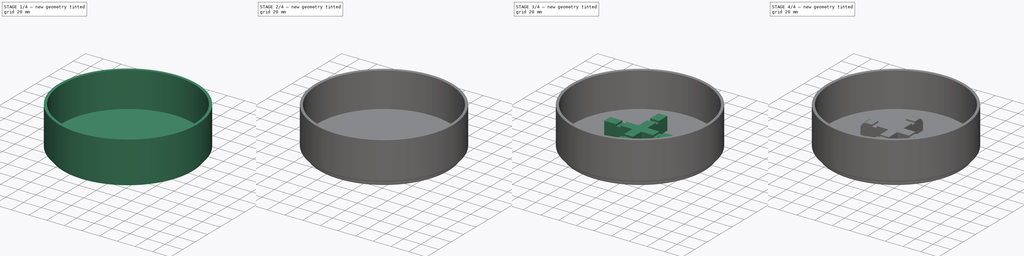
[diagram: build sequence overview — one tinted view per stage of 4, left to right]
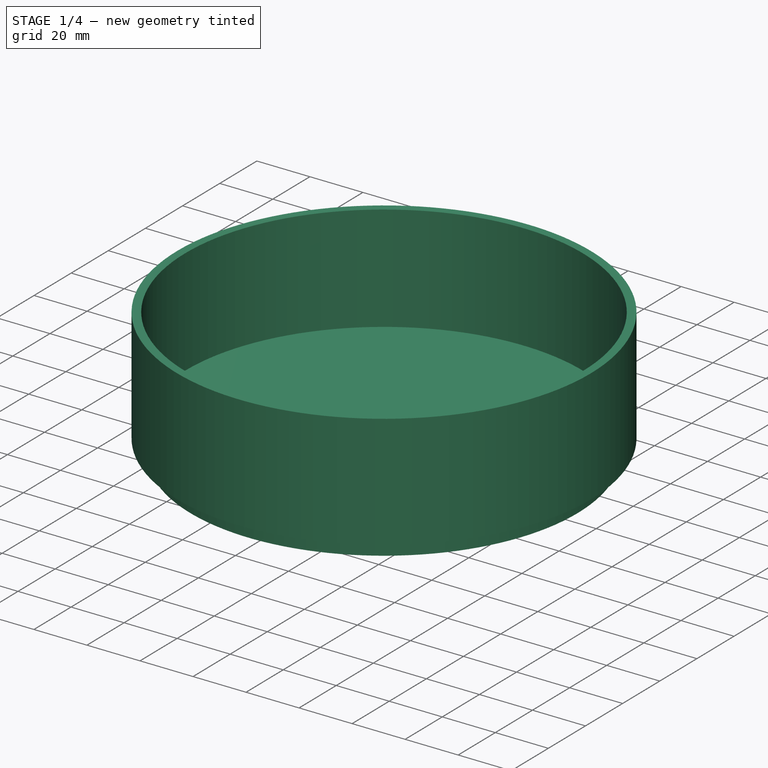
[diagram: stage 1 of 4 — iso view after this stage's code; geometry added in this stage tinted green]
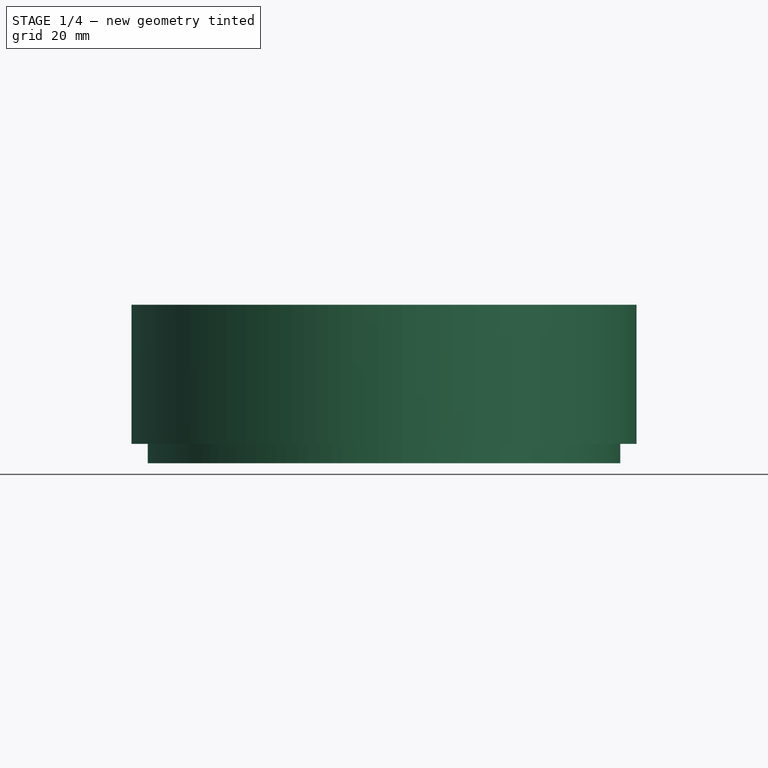
[diagram: stage 1 of 4 — front view after this stage's code; geometry added in this stage tinted green]
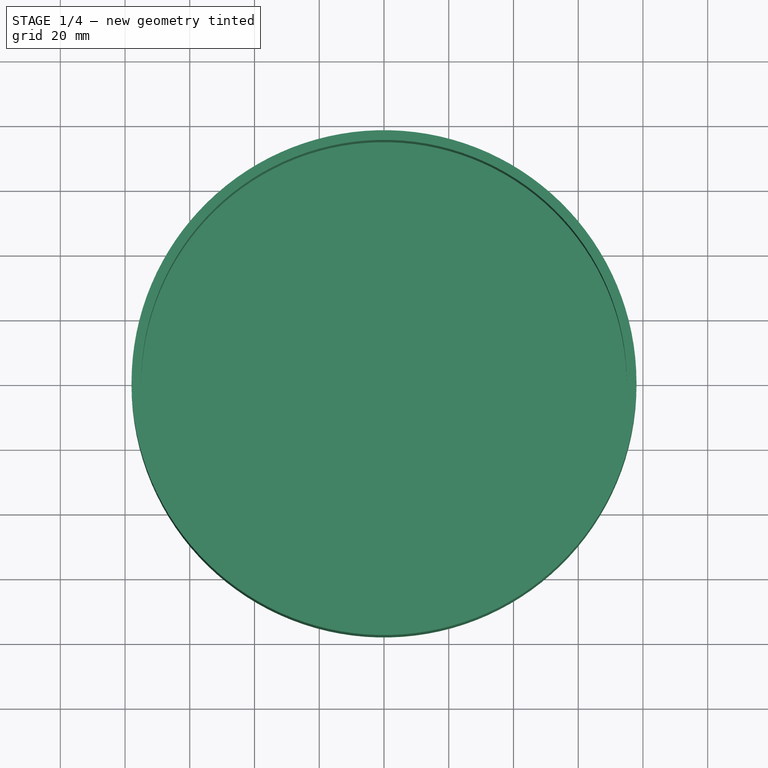
[diagram: stage 1 of 4 — top view after this stage's code; geometry added in this stage tinted green]
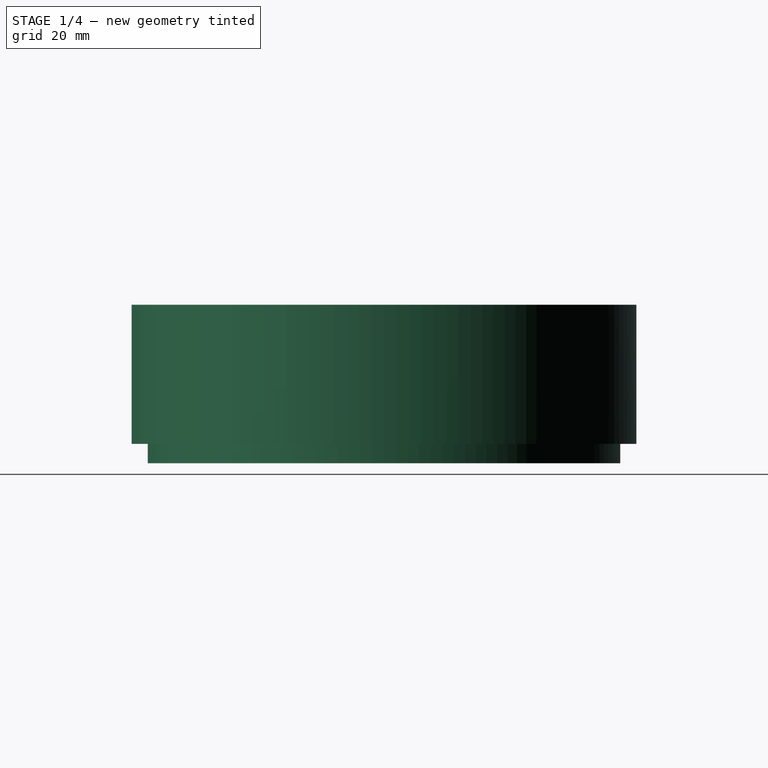
[diagram: stage 1 of 4 — right view after this stage's code; geometry added in this stage tinted green]
FCSTD DOCUMENT  (FreeCAD 0.20R24693 (Git))
Label: stackable-mold-01
License: All rights reserved
LicenseURL: http://en.wikipedia.org/wiki/All_rights_reserved
objects: Sketcher::SketchObject×6, PartDesign::Fillet×5, PartDesign::Pad×4, PartDesign::Pocket×2, PartDesign::Body×2, Spreadsheet::Sheet×1
note: 30 computed .brp shape members not serialized (recipe doc carries the construction recipe); baked Part::Feature solids carry a one-line shape summary decoded from their .brp

FEATURE [Spreadsheet::Sheet] Spreadsheet
  cells = A1=inner_dia; B1(inner_dia)==150mm; A2=inner_height; B2(inner_height)==40mm; A3=thickness; B3(thickness)==3mm; A4=outer_dia; B4(outer_dia)==inner_dia + thickness * 2; A5=outer_height; B5(outer_height)==inner_height + thickness; A6=stack_margin; B6(stack_margin)==1mm; A7=stack_height; B7(stack_height)==thickness * 2; A9=lid_dia; B9(lid_dia)==inner_dia - stack_margin * 2; A10=handle_width; B10(handle_width)==10mm; A11=handle_height; B11(handle_height)==15mm; A12=handle_length; B12(handle_length)==lid_dia / 2; A13=slot_width; B13(slot_width)==5mm; A14=slot_height; B14(slot_height)==2mm; A15=slot_length; B15(slot_length)==handle_width; A16=slot_margin; B16(slot_margin)==(handle_length / 2 - handle_width / 2 - slot_width) / 2; A18=filet_sm; B18(filet_sm)==0.8mm; A19=filet_lg; B19(filet_lg)==8mm
FEATURE [Sketcher::SketchObject] Sketch
  FullyConstrained = true
  MapMode = 5
  Support = -> [XY_Plane]
  expr: Constraints[1] = Spreadsheet.outer_dia
  sketch-geometry (1):
    g0: Circle CenterX=0 CenterY=0 CenterZ=0 NormalX=0 NormalY=0 NormalZ=1 AngleXU=0 Radius=78
  constraints (2):
    c: Coincident(g0,g-1)
    c: Diameter(g0) = 156
FEATURE [PartDesign::Pad] Pad
  Direction = (0,0,1)
  Length = 43
  Length2 = 100
  Profile = -> Sketch
  Type = 0
  expr: Length = Spreadsheet.outer_height
FEATURE [Sketcher::SketchObject] Sketch001
  FullyConstrained = true
  MapMode = 5
  Placement = pos=(0,0,43) rot=(0,0,1;0rad)
  Support = -> [Pad]
  expr: Constraints[1] = Spreadsheet.inner_dia
  sketch-geometry (1):
    g0: Circle CenterX=0 CenterY=0 CenterZ=0 NormalX=0 NormalY=0 NormalZ=1 AngleXU=0 Radius=75
  constraints (2):
    c: Coincident(g0,g-1)
    c: Diameter(g0) = 150
FEATURE [PartDesign::Pocket] Pocket
  BaseFeature = -> Pad
  Length = 40
  Length2 = 100
  Profile = -> Sketch001
  Type = 0
  expr: Length = Spreadsheet.inner_height
FEATURE [Sketcher::SketchObject] Sketch002
  ExternalGeometry = -> [Pocket]
  FullyConstrained = true
  MapMode = 5
  Placement = pos=(0,0,0) rot=(1,0,0;3.14159rad)
  Support = -> [Pocket]
  expr: Constraints[5] = Spreadsheet.thickness + Spreadsheet.stack_margin * 2
  sketch-geometry (3):
    g0: Circle CenterX=0 CenterY=0 CenterZ=0 NormalX=0 NormalY=0 NormalZ=1 AngleXU=0 Radius=73
    g1: GeomPoint X=-78 Y=0 Z=0
    g2: GeomPoint X=-73 Y=0 Z=0
  constraints (6):
    c: Coincident(g0,g-1)
    c: PointOnObject(g1,g-3)
    c: PointOnObject(g2,g0)
    c: PointOnObject(g2,g-1)
    c: PointOnObject(g1,g-1)
    c: DistanceX(g1,g2) = 5
FEATURE [PartDesign::Pad] Pad001
  BaseFeature = -> Pocket
  Direction = (0,0,-1)
  Length = 6
  Length2 = 100
  Profile = -> Sketch002
  Type = 0
  expr: Length = Spreadsheet.stack_height
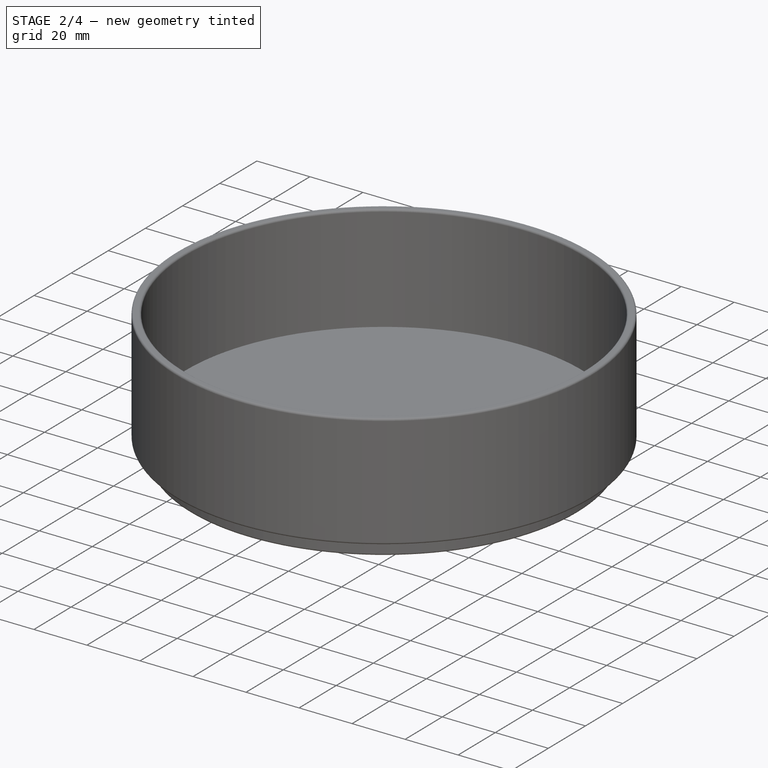
[diagram: stage 2 of 4 — iso view after this stage's code; geometry added in this stage tinted green]
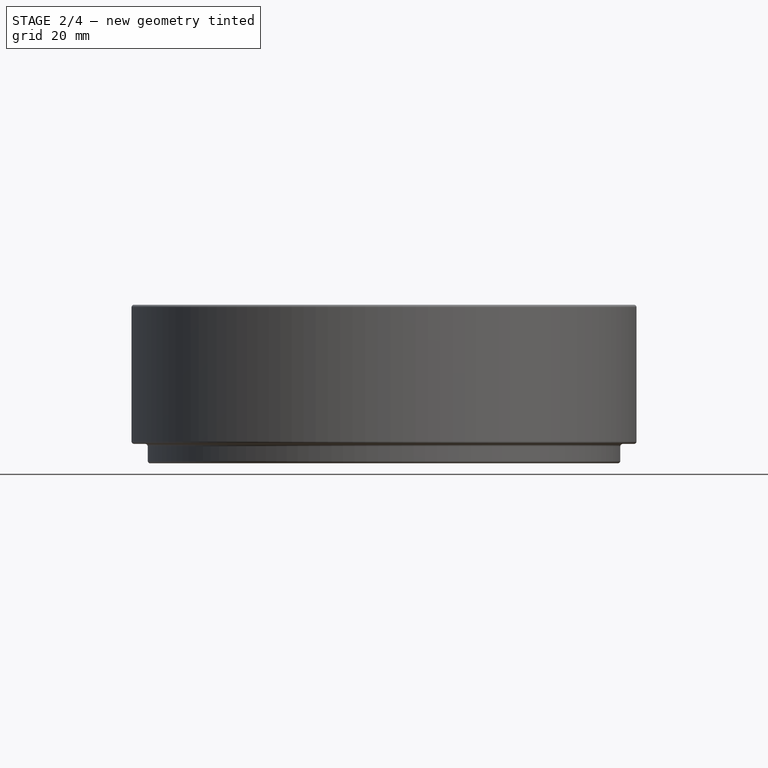
[diagram: stage 2 of 4 — front view after this stage's code; geometry added in this stage tinted green]
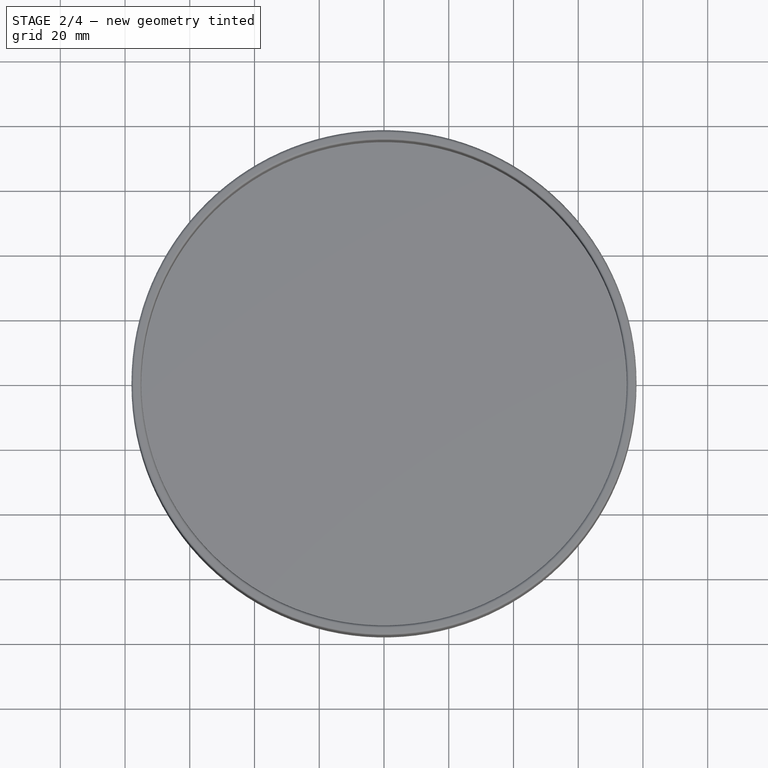
[diagram: stage 2 of 4 — top view after this stage's code; geometry added in this stage tinted green]
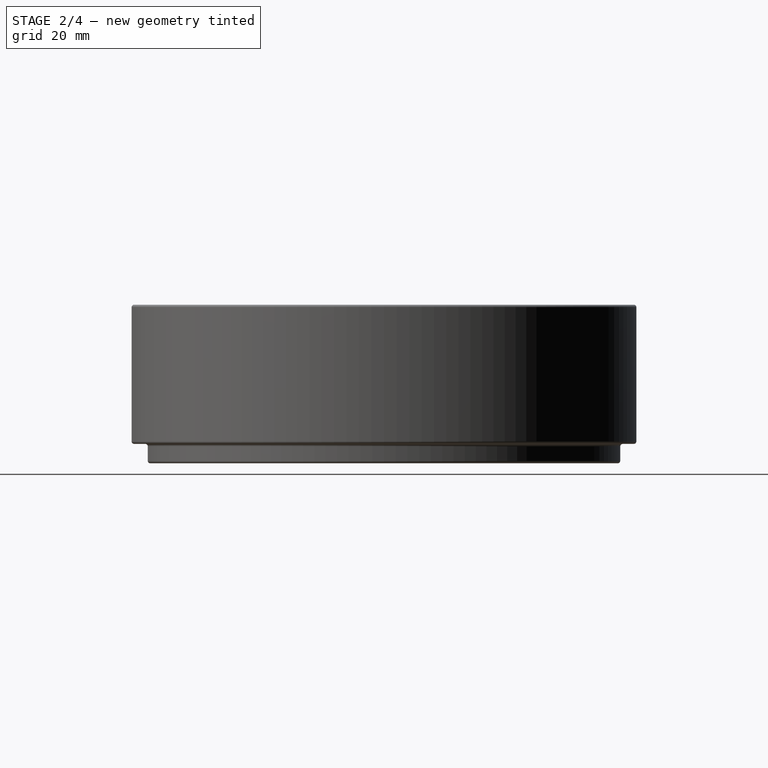
[diagram: stage 2 of 4 — right view after this stage's code; geometry added in this stage tinted green]
FEATURE [Sketcher::SketchObject] Sketch003
  FullyConstrained = true
  MapMode = 5
  Support = -> [XY_Plane001]
  expr: Constraints[1] = Spreadsheet.lid_dia
  sketch-geometry (1):
    g0: Circle CenterX=0 CenterY=0 CenterZ=0 NormalX=0 NormalY=0 NormalZ=1 AngleXU=0 Radius=74
  constraints (2):
    c: Coincident(g0,g-1)
    c: Diameter(g0) = 148
FEATURE [PartDesign::Pad] Pad002
  Direction = (0,0,1)
  Length = 3
  Length2 = 100
  Profile = -> Sketch003
  Type = 0
  expr: Length = Spreadsheet.thickness
FEATURE [PartDesign::Body] Body001  label="lid"
  Group = -> [Sketch003,Pad002,Sketch004,Pad003,Sketch005,Pocket001,Fillet,Fillet001,Fillet002]
  Origin = -> Origin001
  Placement = pos=(0,0,57) rot=(0,0,1;0rad)
  Tip = -> Fillet002
FEATURE [PartDesign::Fillet] Fillet003
  Base = -> Pad001 [Face3]
  BaseFeature = -> Pad001
  Radius = 0.8
  SupportTransform = false
  expr: Radius = Spreadsheet.filet_sm
FEATURE [PartDesign::Fillet] Fillet004
  Base = -> Fillet003 [Edge3,Face5,Face3]
  BaseFeature = -> Fillet003
  Radius = 0.8
  SupportTransform = false
  expr: Radius = Spreadsheet.filet_sm
FEATURE [PartDesign::Body] Body  label="level"
  Group = -> [Sketch,Pad,Sketch001,Pocket,Sketch002,Pad001,Fillet003,Fillet004]
  Origin = -> Origin
  Tip = -> Fillet004
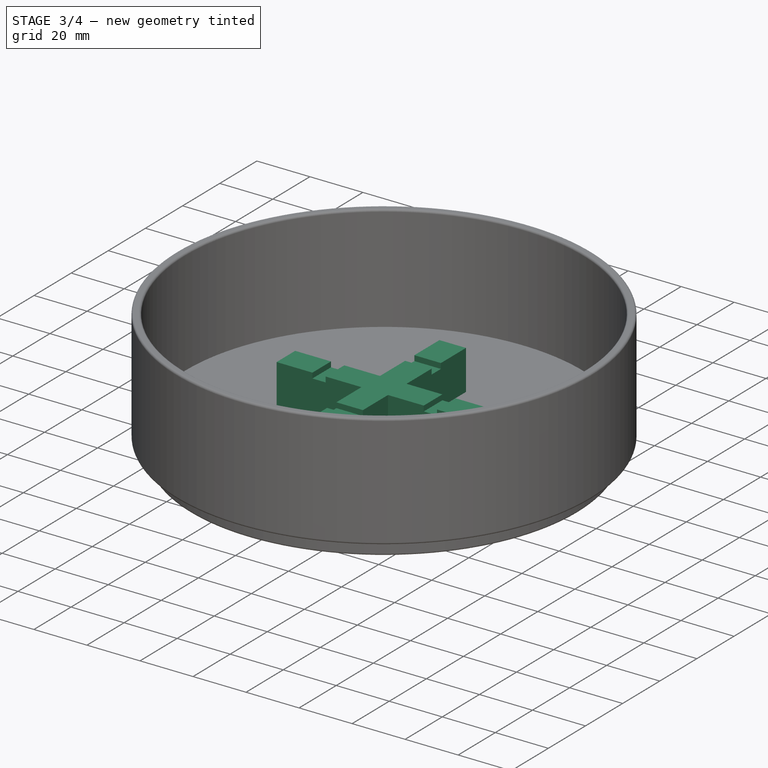
[diagram: stage 3 of 4 — iso view after this stage's code; geometry added in this stage tinted green]
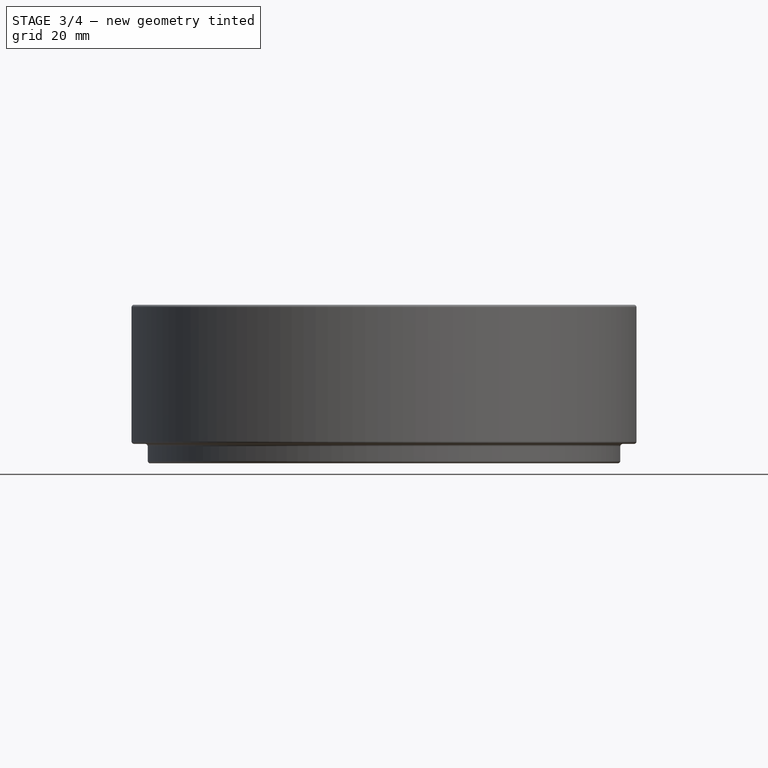
[diagram: stage 3 of 4 — front view after this stage's code; geometry added in this stage tinted green]
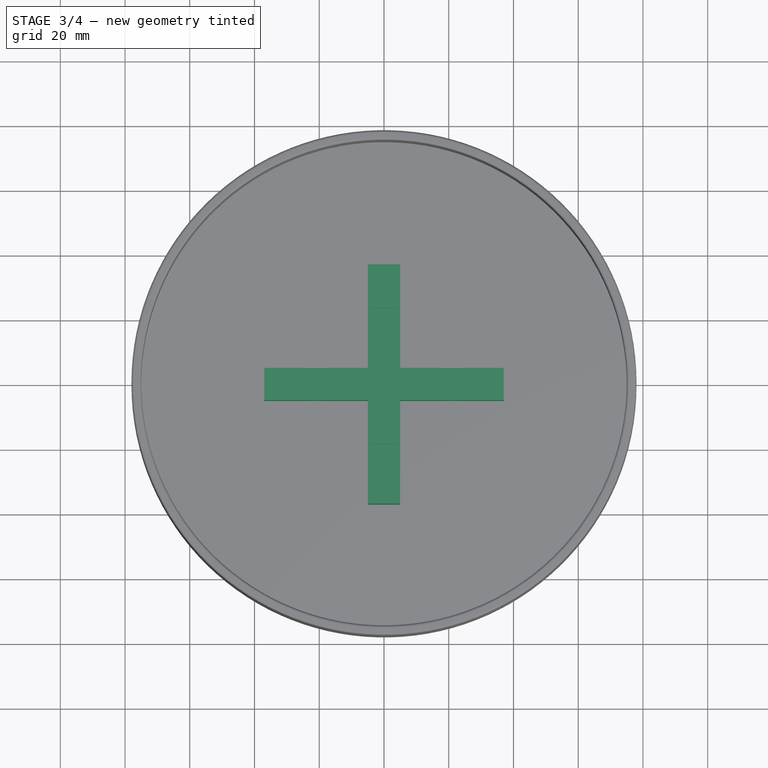
[diagram: stage 3 of 4 — top view after this stage's code; geometry added in this stage tinted green]
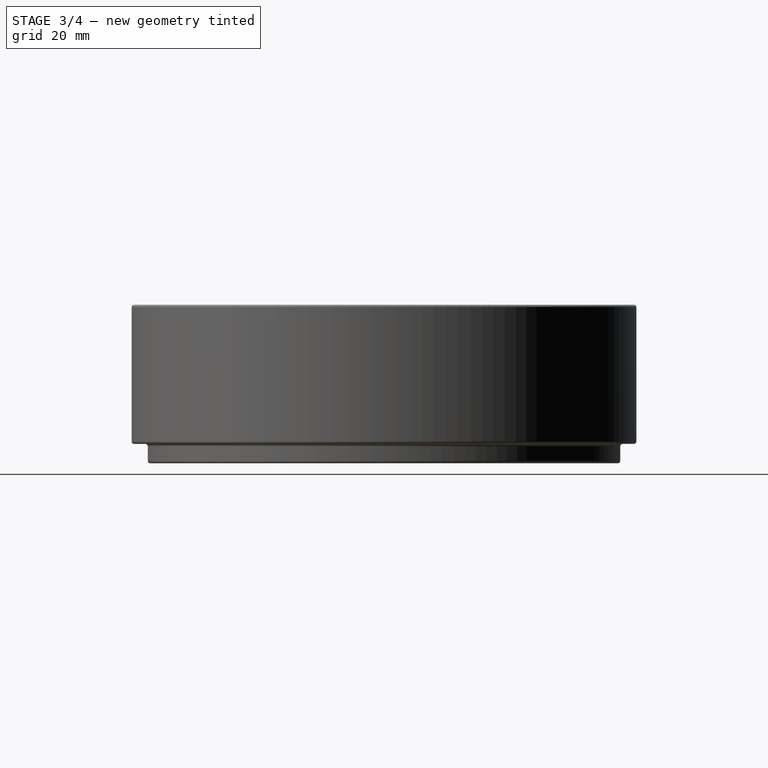
[diagram: stage 3 of 4 — right view after this stage's code; geometry added in this stage tinted green]
FEATURE [Sketcher::SketchObject] Sketch004
  FullyConstrained = true
  MapMode = 5
  Placement = pos=(0,0,3) rot=(0,0,1;0rad)
  Support = -> [Pad002]
  expr: Constraints[8] = Spreadsheet.handle_length
  expr: Constraints[7] = Spreadsheet.handle_width
  sketch-geometry (24):
    g0: LineSegment StartX=-5 StartY=37 StartZ=0 EndX=5 EndY=37 EndZ=0
    g1: LineSegment StartX=5 StartY=37 StartZ=0 EndX=5 EndY=-37 EndZ=0
    g2: LineSegment StartX=5 StartY=-37 StartZ=0 EndX=-5 EndY=-37 EndZ=0
    g3: LineSegment StartX=-5 StartY=-37 StartZ=0 EndX=-5 EndY=37 EndZ=0
    g4: LineSegment StartX=-37 StartY=5 StartZ=0 EndX=37 EndY=5 EndZ=0
    g5: LineSegment StartX=37 StartY=5 StartZ=0 EndX=37 EndY=-5 EndZ=0
    g6: LineSegment StartX=37 StartY=-5 StartZ=0 EndX=-37 EndY=-5 EndZ=0
    g7: LineSegment StartX=-37 StartY=-5 StartZ=0 EndX=-37 EndY=5 EndZ=0
    g8: GeomPoint X=-5 Y=5 Z=0
    g9: GeomPoint X=-5 Y=-5 Z=0
    g10: GeomPoint X=5 Y=-5 Z=0
    g11: GeomPoint X=5 Y=5 Z=0
    g12: LineSegment StartX=-5 StartY=37 StartZ=0 EndX=-5 EndY=5 EndZ=0
    g13: LineSegment StartX=-37 StartY=5 StartZ=0 EndX=-37 EndY=-5 EndZ=0
    g14: LineSegment StartX=-5 StartY=-5 StartZ=0 EndX=-5 EndY=-37 EndZ=0
    g15: LineSegment StartX=5 StartY=-37 StartZ=0 EndX=5 EndY=-5 EndZ=0
    g16: LineSegment StartX=37 StartY=-5 StartZ=0 EndX=37 EndY=5 EndZ=0
    g17: LineSegment StartX=5 StartY=5 StartZ=0 EndX=5 EndY=37 EndZ=0
    g18: LineSegment StartX=-5 StartY=37 StartZ=0 EndX=5 EndY=37 EndZ=0
    g19: LineSegment StartX=-37 StartY=5 StartZ=0 EndX=-5 EndY=5 EndZ=0
    g20: LineSegment StartX=-37 StartY=-5 StartZ=0 EndX=-5 EndY=-5 EndZ=0
    g21: LineSegment StartX=5 StartY=-5 StartZ=0 EndX=37 EndY=-5 EndZ=0
    g22: LineSegment StartX=5 StartY=5 StartZ=0 EndX=37 EndY=5 EndZ=0
    g23: LineSegment StartX=-5 StartY=-37 StartZ=0 EndX=5 EndY=-37 EndZ=0
  constraints (52):
    c: Coincident(g0,g1)
    c: Coincident(g1,g2)
    c: Coincident(g2,g3)
    c: Coincident(g3,g0)
    c: Horizontal(g2)
    c: Symmetric(g0,g0,g-2)
    c: Symmetric(g0,g2,g-1)
    c: DistanceX(g0,g0) = 10
    c: DistanceY(g3,g3) = 74
    c: Coincident(g4,g5)
    c: Coincident(g5,g6)
    c: Coincident(g6,g7)
    c: Coincident(g7,g4)
    c: Horizontal(g6)
    c: Vertical(g5)
    c: Symmetric(g4,g4,g-2)
    c: Symmetric(g6,g4,g-1)
    c: Equal(g7,g0)
    c: Equal(g4,g3)
    c: PointOnObject(g8,g3)
    c: PointOnObject(g9,g3)
    c: PointOnObject(g10,g1)
    c: PointOnObject(g11,g4)
    c: PointOnObject(g11,g1)
    c: PointOnObject(g8,g4)
    c: PointOnObject(g9,g6)
    c: PointOnObject(g10,g6)
    c: Coincident(g12,g0)
    c: Coincident(g12,g8)
    c: Coincident(g13,g4)
    c: Coincident(g13,g6)
    c: Coincident(g14,g9)
    c: Coincident(g14,g2)
    c: Coincident(g15,g1)
    c: Coincident(g15,g10)
    c: Vertical(g15)
    c: Coincident(g16,g5)
    c: Coincident(g16,g4)
    c: Coincident(g17,g11)
    c: Coincident(g17,g0)
    c: Coincident(g18,g12)
    c: Coincident(g18,g17)
    c: Coincident(g19,g13)
    c: Coincident(g19,g12)
    c: Coincident(g20,g13)
    c: Coincident(g20,g14)
    c: Coincident(g21,g15)
    c: Coincident(g21,g16)
    c: Coincident(g22,g17)
    c: Coincident(g22,g16)
    c: Coincident(g23,g14)
    c: Coincident(g23,g15)
FEATURE [PartDesign::Pad] Pad003
  BaseFeature = -> Pad002
  Direction = (0,0,1)
  Length = 15
  Length2 = 100
  Profile = -> Sketch004
  Type = 0
  expr: Length = Spreadsheet.handle_height
FEATURE [Sketcher::SketchObject] Sketch005
  ExternalGeometry = -> [Pad003]
  FullyConstrained = true
  MapMode = 5
  Placement = pos=(0,0,18) rot=(0,0,1;0rad)
  Support = -> [Pad003]
  expr: Constraints[47] = Spreadsheet.slot_margin
  expr: Constraints[46] = Spreadsheet.slot_margin
  expr: Constraints[45] = Spreadsheet.slot_margin
  expr: Constraints[38] = Spreadsheet.slot_margin
  expr: Constraints[37] = Spreadsheet.slot_width
  expr: Constraints[36] = Spreadsheet.slot_length
  sketch-geometry (16):
    g0: LineSegment StartX=-18.5 StartY=5 StartZ=0 EndX=-23.5 EndY=5 EndZ=0
    g1: LineSegment StartX=-23.5 StartY=5 StartZ=0 EndX=-23.5 EndY=-5 EndZ=0
    g2: LineSegment StartX=-23.5 StartY=-5 StartZ=0 EndX=-18.5 EndY=-5 EndZ=0
    g3: LineSegment StartX=-18.5 StartY=-5 StartZ=0 EndX=-18.5 EndY=5 EndZ=0
    g4: LineSegment StartX=18.5 StartY=5 StartZ=0 EndX=23.5 EndY=5 EndZ=0
    g5: LineSegment StartX=23.5 StartY=5 StartZ=0 EndX=23.5 EndY=-5 EndZ=0
    g6: LineSegment StartX=23.5 StartY=-5 StartZ=0 EndX=18.5 EndY=-5 EndZ=0
    g7: LineSegment StartX=18.5 StartY=-5 StartZ=0 EndX=18.5 EndY=5 EndZ=0
    g8: LineSegment StartX=-5 StartY=18.5 StartZ=0 EndX=5 EndY=18.5 EndZ=0
    g9: LineSegment StartX=5 StartY=18.5 StartZ=0 EndX=5 EndY=23.5 EndZ=0
    g10: LineSegment StartX=5 StartY=23.5 StartZ=0 EndX=-5 EndY=23.5 EndZ=0
    g11: LineSegment StartX=-5 StartY=23.5 StartZ=0 EndX=-5 EndY=18.5 EndZ=0
    g12: LineSegment StartX=-5 StartY=-23.5 StartZ=0 EndX=5 EndY=-23.5 EndZ=0
    g13: LineSegment StartX=5 StartY=-23.5 StartZ=0 EndX=5 EndY=-18.5 EndZ=0
    g14: LineSegment StartX=5 StartY=-18.5 StartZ=0 EndX=-5 EndY=-18.5 EndZ=0
    g15: LineSegment StartX=-5 StartY=-18.5 StartZ=0 EndX=-5 EndY=-23.5 EndZ=0
  constraints (48):
    c: Coincident(g0,g1)
    c: Coincident(g1,g2)
    c: Coincident(g2,g3)
    c: Coincident(g3,g0)
    c: Horizontal(g0)
    c: Horizontal(g2)
    c: Vertical(g1)
    c: Vertical(g3)
    c: PointOnObject(g0,g-8)
    c: Coincident(g4,g5)
    c: Coincident(g5,g6)
    c: Coincident(g6,g7)
    c: Coincident(g7,g4)
    c: Horizontal(g4)
    c: Horizontal(g6)
    c: Vertical(g5)
    c: Vertical(g7)
    c: PointOnObject(g4,g-9)
    c: Coincident(g8,g9)
    c: Coincident(g9,g10)
    c: Coincident(g10,g11)
    c: Coincident(g11,g8)
    c: Horizontal(g8)
    c: Horizontal(g10)
    c: Vertical(g9)
    c: Vertical(g11)
    c: PointOnObject(g8,g-10)
    c: Coincident(g12,g13)
    c: Coincident(g13,g14)
    c: Coincident(g14,g15)
    c: Coincident(g15,g12)
    c: Horizontal(g12)
    c: Horizontal(g14)
    c: Vertical(g13)
    c: Vertical(g15)
    c: PointOnObject(g12,g-7)
    c: DistanceY(g3,g3) = 10
    c: DistanceX(g0,g0) = 5
    c: DistanceX(g-8,g0) = 13.5
    c: Equal(g1,g8)
    c: Equal(g8,g7)
    c: Equal(g7,g12)
    c: Equal(g0,g11)
    c: Equal(g11,g4)
    c: Equal(g4,g13)
    c: DistanceY(g10,g-10) = 13.5
    c: DistanceX(g4,g-9) = 13.5
    c: DistanceY(g-7,g12) = 13.5
FEATURE [PartDesign::Pocket] Pocket001
  BaseFeature = -> Pad003
  Length = 2
  Length2 = 100
  Profile = -> Sketch005
  Type = 0
  expr: Length = Spreadsheet.slot_height
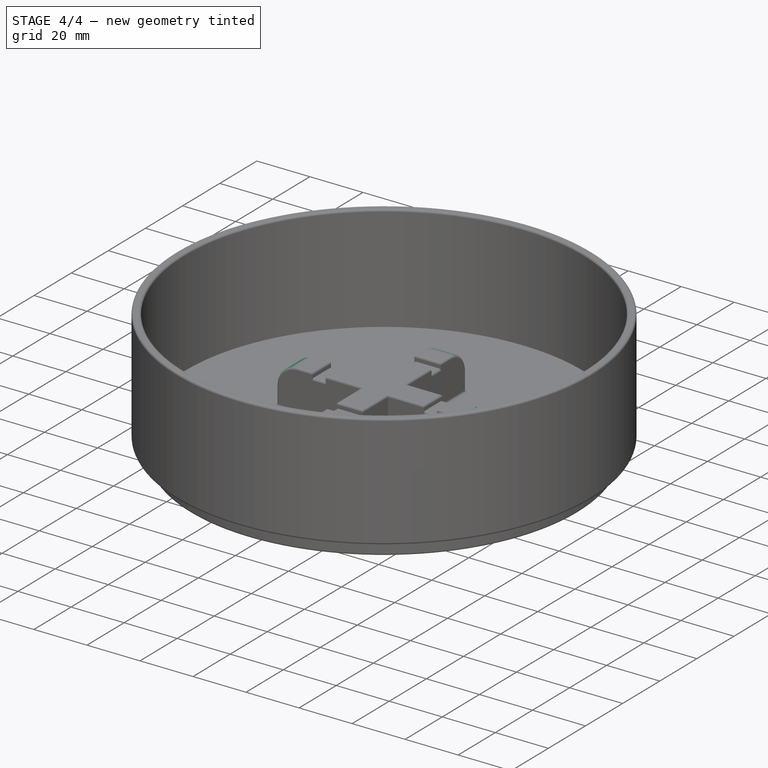
[diagram: stage 4 of 4 — iso view after this stage's code; geometry added in this stage tinted green]
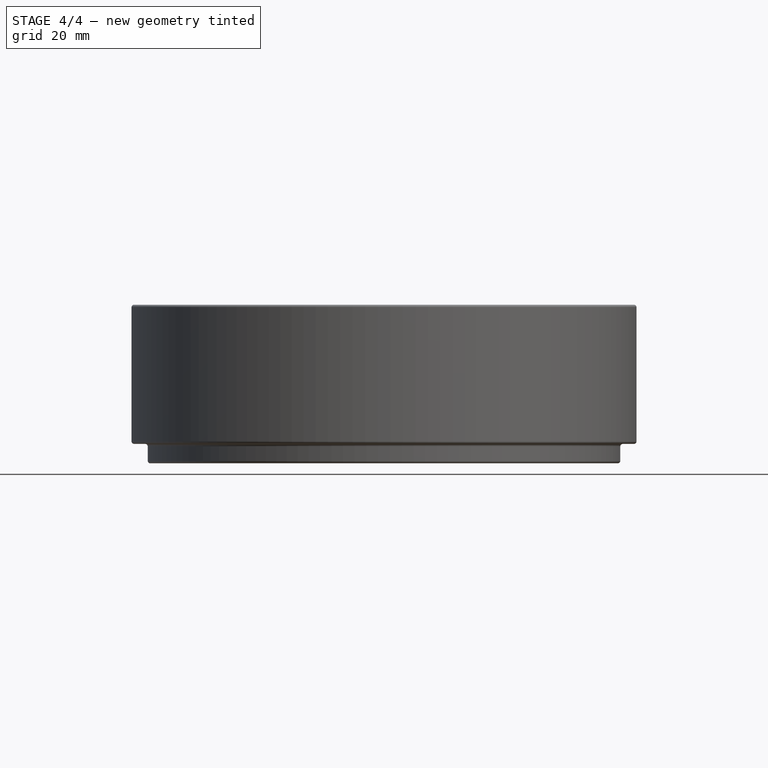
[diagram: stage 4 of 4 — front view after this stage's code; geometry added in this stage tinted green]
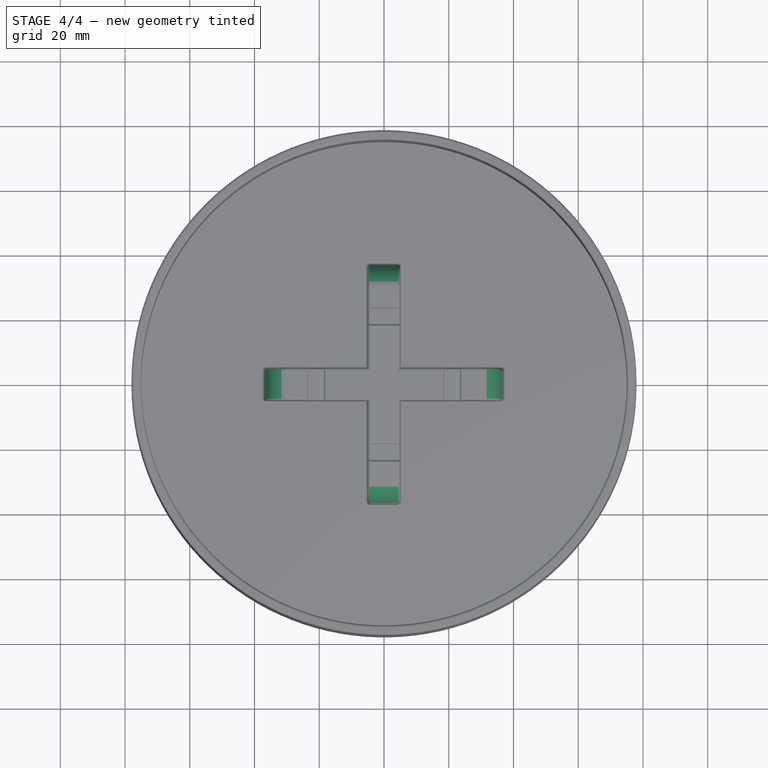
[diagram: stage 4 of 4 — top view after this stage's code; geometry added in this stage tinted green]
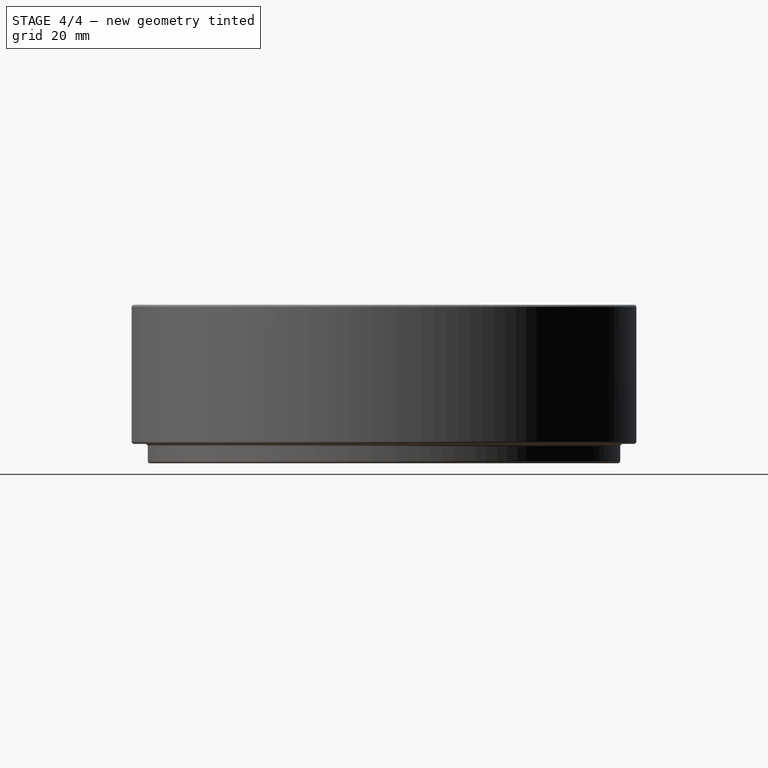
[diagram: stage 4 of 4 — right view after this stage's code; geometry added in this stage tinted green]
FEATURE [PartDesign::Fillet] Fillet
  Base = -> Pocket001 [Edge24,Edge66,Edge52,Edge38]
  BaseFeature = -> Pocket001
  Radius = 8
  SupportTransform = false
  expr: Radius = Spreadsheet.filet_lg
FEATURE [PartDesign::Fillet] Fillet001
  Base = -> Fillet [Edge32,Edge33,Edge30,Edge7,Edge8,Edge4,Edge45,Edge44,Edge42,Edge41,Edge39,Edge38,Edge85,Edge83,Edge78,Edge75,Edge69,Edge71,Edge64,Edge61,Edge53,Edge57,Edge48,Edge26,Edge98,Edge40,Edge43,Edge95,Edge46,Edge27,Edge89,Edge37]
  BaseFeature = -> Fillet
  Radius = 0.8
  SupportTransform = false
  expr: Radius = Spreadsheet.filet_sm
FEATURE [PartDesign::Fillet] Fillet002
  Base = -> Fillet001 [Face2]
  BaseFeature = -> Fillet001
  Radius = 0.8
  SupportTransform = false
  expr: Radius = Spreadsheet.filet_sm
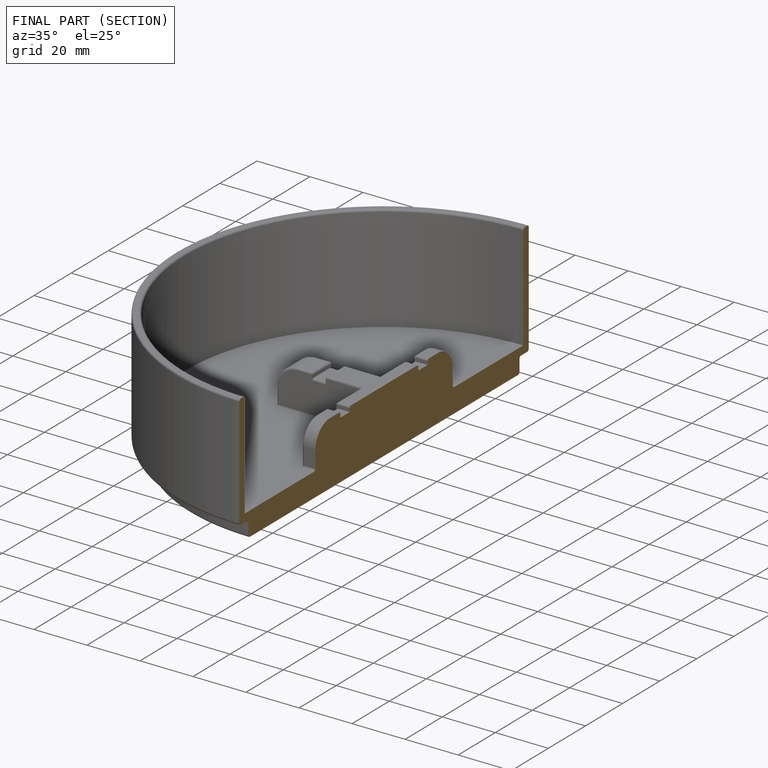
[diagram: finished part — half-section view (interior)]
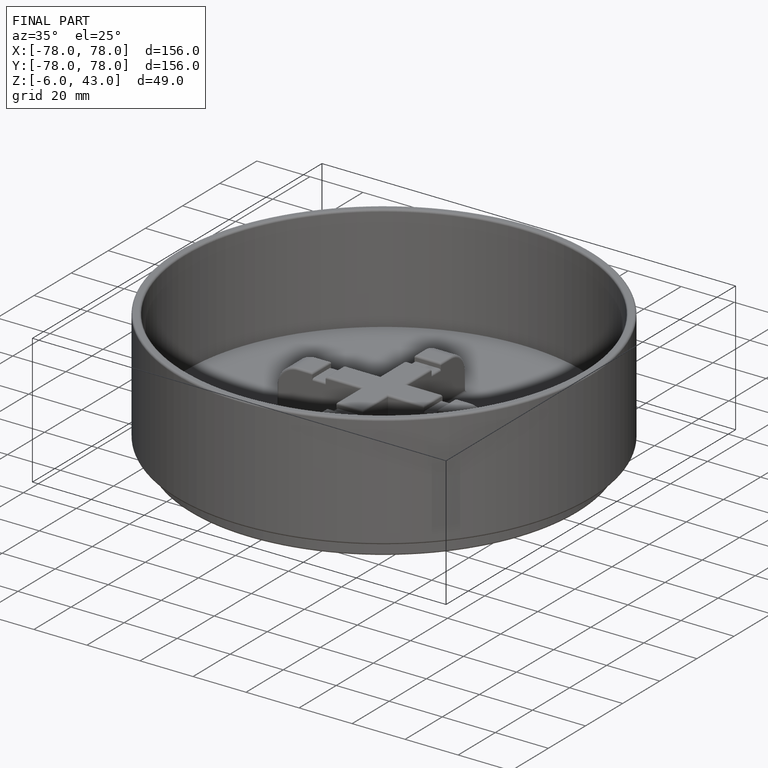
[diagram: finished part — iso view with bounding-box wireframe]
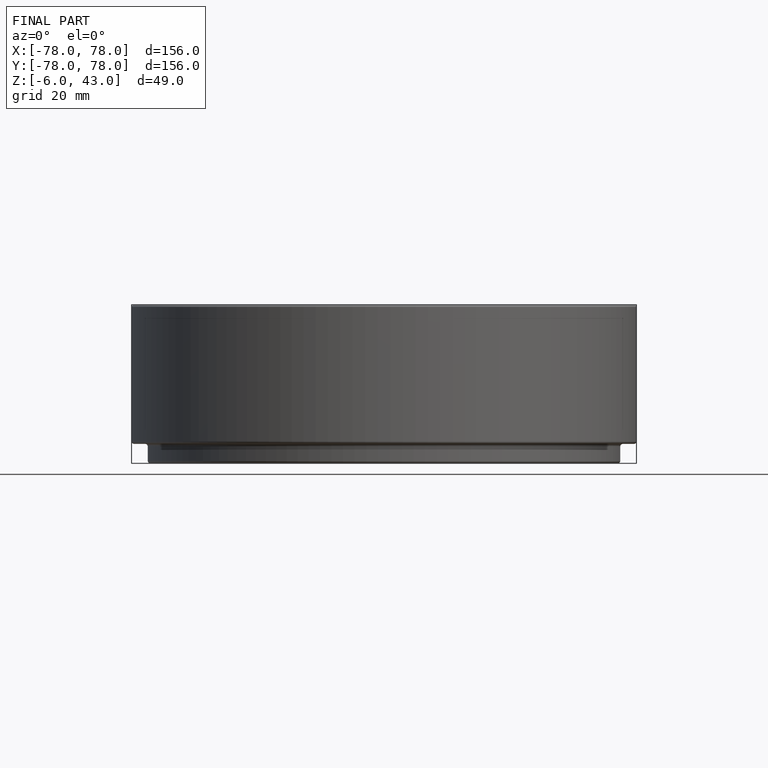
[diagram: finished part — front view with bounding-box wireframe]
